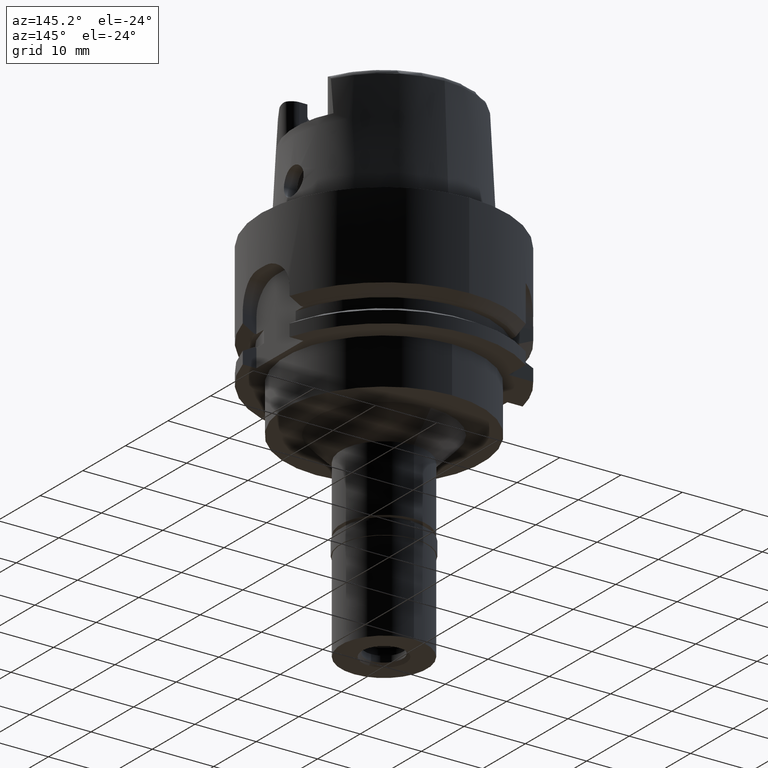
[diagram: clean part render]
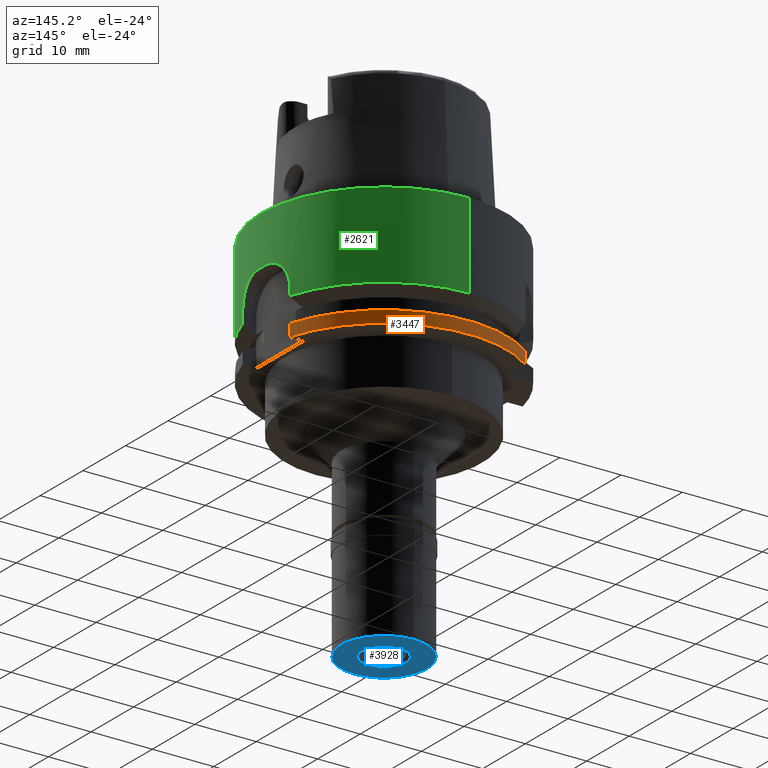
[diagram: same view with three faces highlighted in distinct colors, each labeled with its STEP entity id]
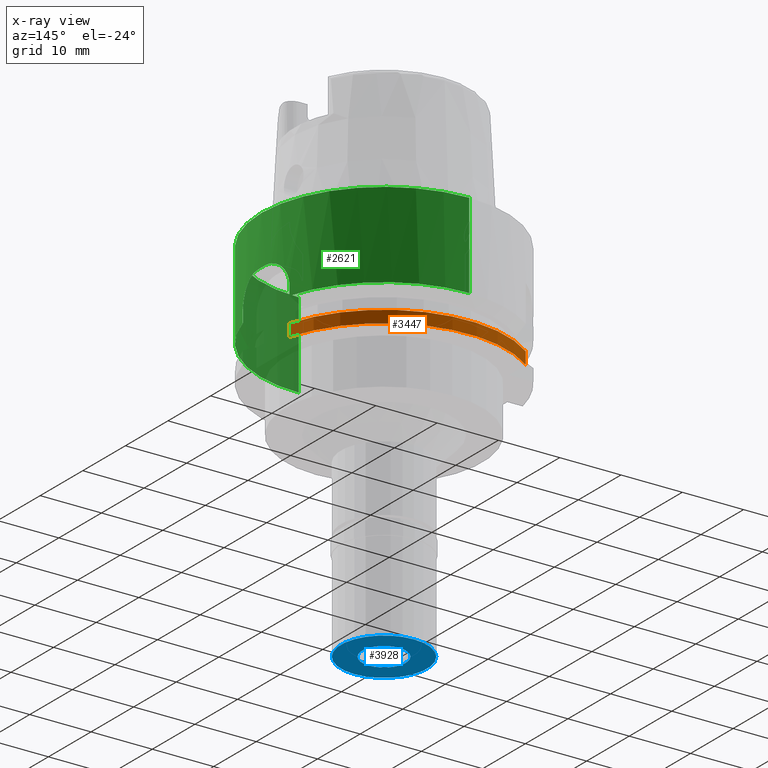
[diagram: x-ray of the same camera — body ghosted, the three highlighted faces saturated]
A machine part, auxiliary view with three faces highlighted in distinct colors.
The next image is the same camera in x-ray (body ghosted, the three faces saturated) — at least one of them is partly hidden behind the body in this view.
Their STEP definitions:

[orange] entity #3447 — the highlighted cylindrical surface (partial cylindrical patch) has radius 20 mm, axis along (0, 0, 1).
#133 = CARTESIAN_POINT ( 'NONE',  ( 0.0000000000000000000, 0.0000000000000000000, -59.79999999999999716 ) ) ;
#136 = DIRECTION ( 'NONE',  ( -6.971991833363777975E-08, 2.437508621263919261E-07, 0.9999999999999678035 ) ) ;
#162 = LINE ( 'NONE', #3825, #3506 ) ;
#165 = CARTESIAN_POINT ( 'NONE',  ( 0.0000000000000000000, 0.0000000000000000000, -18.02072594216000212 ) ) ;
#246 = DIRECTION ( 'NONE',  ( 0.0000000000000000000, 0.0000000000000000000, 1.000000000000000000 ) ) ;
#376 = VERTEX_POINT ( 'NONE', #5070 ) ;
#458 = DIRECTION ( 'NONE',  ( 0.0000000000000000000, 1.000000000000000000, 0.0000000000000000000 ) ) ;
#854 = EDGE_CURVE ( 'NONE', #5096, #376, #1889, .T. ) ;
#950 = AXIS2_PLACEMENT_3D ( 'NONE', #133, #2494, #458 ) ;
#1043 = VERTEX_POINT ( 'NONE', #2911 ) ;
#1296 = EDGE_LOOP ( 'NONE', ( #2926, #5114, #4086, #2801 ) ) ;
#1365 = CIRCLE ( 'NONE', #4160, 20.00000000000000000 ) ;
#1468 = CARTESIAN_POINT ( 'NONE',  ( 19.22888452303000051, 5.500000000000000000, -20.00000000000000000 ) ) ;
#1478 = DIRECTION ( 'NONE',  ( 0.0000000000000000000, 1.000000000000000000, 0.0000000000000000000 ) ) ;
#1834 = DIRECTION ( 'NONE',  ( 0.0000000000000000000, 0.0000000000000000000, -1.000000000000000000 ) ) ;
#1889 = LINE ( 'NONE', #5198, #3452 ) ;
#2056 = CARTESIAN_POINT ( 'NONE',  ( -12.00000837203000081, 15.99999372097000006, -18.02075773440000006 ) ) ;
#2338 = DIRECTION ( 'NONE',  ( 4.229916271528087972E-06, 3.172442792338068757E-06, -0.9999999999860217370 ) ) ;
#2398 = AXIS2_PLACEMENT_3D ( 'NONE', #165, #1834, #5086 ) ;
#2494 = DIRECTION ( 'NONE',  ( 0.0000000000000000000, 0.0000000000000000000, 1.000000000000000000 ) ) ;
#2801 = ORIENTED_EDGE ( 'NONE', *, *, #854, .F. ) ;
#2911 = CARTESIAN_POINT ( 'NONE',  ( 19.22888438503999708, 5.500000482449000749, -18.02072998519999913 ) ) ;
#2926 = ORIENTED_EDGE ( 'NONE', *, *, #5388, .T. ) ;
#2961 = FACE_OUTER_BOUND ( 'NONE', #1296, .T. ) ;
#3247 = EDGE_CURVE ( 'NONE', #3680, #1043, #162, .T. ) ;
#3447 = ADVANCED_FACE ( 'NONE', ( #2961 ), #5108, .T. ) ;
#3452 = VECTOR ( 'NONE', #2338, 1000.000000000000114 ) ;
#3495 = CARTESIAN_POINT ( 'NONE',  ( 0.0000000000000000000, 0.0000000000000000000, -20.00000000000000000 ) ) ;
#3506 = VECTOR ( 'NONE', #136, 1000.000000000000227 ) ;
#3680 = VERTEX_POINT ( 'NONE', #1468 ) ;
#3825 = CARTESIAN_POINT ( 'NONE',  ( 19.22888452303000051, 5.500000000000000000, -20.00000000000000000 ) ) ;
#4086 = ORIENTED_EDGE ( 'NONE', *, *, #5001, .T. ) ;
#4160 = AXIS2_PLACEMENT_3D ( 'NONE', #3495, #246, #1478 ) ;
#4784 = CIRCLE ( 'NONE', #2398, 20.00000000000000000 ) ;
#5001 = EDGE_CURVE ( 'NONE', #3680, #376, #1365, .T. ) ;
#5070 = CARTESIAN_POINT ( 'NONE',  ( -12.00000000000000000, 16.00000000000000000, -20.00000000000000000 ) ) ;
#5086 = DIRECTION ( 'NONE',  ( -0.5999999999999999778, 0.8000000000000000444, 0.0000000000000000000 ) ) ;
#5096 = VERTEX_POINT ( 'NONE', #2056 ) ;
#5108 = CYLINDRICAL_SURFACE ( 'NONE', #950, 20.00000000000000000 ) ;
#5114 = ORIENTED_EDGE ( 'NONE', *, *, #3247, .F. ) ;
#5198 = CARTESIAN_POINT ( 'NONE',  ( -12.00000837203000081, 15.99999372097000006, -18.02075773440000006 ) ) ;
#5388 = EDGE_CURVE ( 'NONE', #5096, #1043, #4784, .T. ) ;

[blue] entity #3928 — the highlighted planar face has unit normal (0, 0, 1).
#73 = VERTEX_POINT ( 'NONE', #3901 ) ;
#220 = CIRCLE ( 'NONE', #3262, 7.000000000000000000 ) ;
#349 = ORIENTED_EDGE ( 'NONE', *, *, #2715, .F. ) ;
#556 = CARTESIAN_POINT ( 'NONE',  ( 0.0000000000000000000, 0.0000000000000000000, -17.00000000000000000 ) ) ;
#732 = VERTEX_POINT ( 'NONE', #1784 ) ;
#742 = CARTESIAN_POINT ( 'NONE',  ( 0.0000000000000000000, 0.0000000000000000000, -17.00000000000000000 ) ) ;
#792 = ORIENTED_EDGE ( 'NONE', *, *, #4270, .F. ) ;
#850 = CARTESIAN_POINT ( 'NONE',  ( 0.0000000000000000000, 0.0000000000000000000, -17.00000000000000000 ) ) ;
#879 = DIRECTION ( 'NONE',  ( 0.0000000000000000000, 1.000000000000000000, 0.0000000000000000000 ) ) ;
#880 = DIRECTION ( 'NONE',  ( 0.0000000000000000000, 1.000000000000000000, 0.0000000000000000000 ) ) ;
#908 = CIRCLE ( 'NONE', #5183, 3.550000000000000266 ) ;
#912 = AXIS2_PLACEMENT_3D ( 'NONE', #556, #1405, #880 ) ;
#993 = EDGE_CURVE ( 'NONE', #73, #4643, #908, .T. ) ;
#1362 = EDGE_CURVE ( 'NONE', #4643, #73, #5335, .T. ) ;
#1405 = DIRECTION ( 'NONE',  ( 0.0000000000000000000, 0.0000000000000000000, -1.000000000000000000 ) ) ;
#1624 = EDGE_LOOP ( 'NONE', ( #1631, #5051 ) ) ;
#1631 = ORIENTED_EDGE ( 'NONE', *, *, #1362, .F. ) ;
#1634 = CARTESIAN_POINT ( 'NONE',  ( 0.0000000000000000000, 0.0000000000000000000, -17.00000000000000000 ) ) ;
#1739 = CIRCLE ( 'NONE', #3579, 7.000000000000000000 ) ;
#1784 = CARTESIAN_POINT ( 'NONE',  ( 0.0000000000000000000, 7.000000000000000000, -17.00000000000000000 ) ) ;
#1862 = CARTESIAN_POINT ( 'NONE',  ( 0.0000000000000000000, -7.000000000000000000, -17.00000000000000000 ) ) ;
#1873 = DIRECTION ( 'NONE',  ( 0.0000000000000000000, 0.0000000000000000000, 1.000000000000000000 ) ) ;
#1939 = DIRECTION ( 'NONE',  ( 0.0000000000000000000, 0.0000000000000000000, 1.000000000000000000 ) ) ;
#2268 = FACE_BOUND ( 'NONE', #1624, .T. ) ;
#2320 = EDGE_LOOP ( 'NONE', ( #349, #792 ) ) ;
#2416 = DIRECTION ( 'NONE',  ( 0.0000000000000000000, -1.000000000000000000, 0.0000000000000000000 ) ) ;
#2421 = AXIS2_PLACEMENT_3D ( 'NONE', #4778, #1873, #4806 ) ;
#2630 = FACE_OUTER_BOUND ( 'NONE', #2320, .T. ) ;
#2715 = EDGE_CURVE ( 'NONE', #732, #2922, #220, .T. ) ;
#2804 = DIRECTION ( 'NONE',  ( 0.0000000000000000000, -1.000000000000000000, 0.0000000000000000000 ) ) ;
#2889 = DIRECTION ( 'NONE',  ( 0.0000000000000000000, 0.0000000000000000000, 1.000000000000000000 ) ) ;
#2922 = VERTEX_POINT ( 'NONE', #1862 ) ;
#3134 = CARTESIAN_POINT ( 'NONE',  ( 0.0000000000000000000, 3.550000000000000266, -17.00000000000000000 ) ) ;
#3262 = AXIS2_PLACEMENT_3D ( 'NONE', #850, #2889, #879 ) ;
#3579 = AXIS2_PLACEMENT_3D ( 'NONE', #742, #1939, #2804 ) ;
#3901 = CARTESIAN_POINT ( 'NONE',  ( 0.0000000000000000000, -3.550000000000000266, -17.00000000000000000 ) ) ;
#3928 = ADVANCED_FACE ( 'NONE', ( #2630, #2268 ), #5155, .F. ) ;
#4270 = EDGE_CURVE ( 'NONE', #2922, #732, #1739, .T. ) ;
#4557 = DIRECTION ( 'NONE',  ( 0.0000000000000000000, 0.0000000000000000000, -1.000000000000000000 ) ) ;
#4643 = VERTEX_POINT ( 'NONE', #3134 ) ;
#4778 = CARTESIAN_POINT ( 'NONE',  ( 0.0000000000000000000, 0.0000000000000000000, -17.00000000000000000 ) ) ;
#4806 = DIRECTION ( 'NONE',  ( 1.000000000000000000, 0.0000000000000000000, 0.0000000000000000000 ) ) ;
#5051 = ORIENTED_EDGE ( 'NONE', *, *, #993, .F. ) ;
#5155 = PLANE ( 'NONE',  #2421 ) ;
#5183 = AXIS2_PLACEMENT_3D ( 'NONE', #1634, #4557, #2416 ) ;
#5335 = CIRCLE ( 'NONE', #912, 3.550000000000000266 ) ;

[green] entity #2621 — the highlighted cylindrical surface (partial cylindrical patch) has radius 20 mm, axis along (0, 0, 1).
#51 = DIRECTION ( 'NONE',  ( 0.0000000000000000000, 0.0000000000000000000, 1.000000000000000000 ) ) ;
#56 = CARTESIAN_POINT ( 'NONE',  ( 19.22888452303000051, -5.500000000000000000, -12.50000000000000000 ) ) ;
#91 = AXIS2_PLACEMENT_3D ( 'NONE', #1061, #1137, #2823 ) ;
#92 = DIRECTION ( 'NONE',  ( 0.0000000000000000000, -4.549132851063000272E-14, -1.000000000000000000 ) ) ;
#97 = EDGE_CURVE ( 'NONE', #3498, #1201, #2639, .T. ) ;
#110 = CARTESIAN_POINT ( 'NONE',  ( 0.0000000000000000000, 0.0000000000000000000, -13.97927405783999966 ) ) ;
#151 = CARTESIAN_POINT ( 'NONE',  ( 19.89335567336978627, 2.144328412485492219, -8.101629999660756809 ) ) ;
#167 = B_SPLINE_CURVE_WITH_KNOTS ( 'NONE', 3,
 ( #3673, #5359, #1565, #1099, #4827, #1617, #749, #3193, #2400, #2323, #5330, #2428, #4493, #2375, #1589, #4904, #4928, #778, #365, #2022, #5254, #2351, #1074, #2734, #4414, #674, #3998, #1510, #3169, #4851, #2762, #4026, #698, #1946, #5281, #4167, #1232, #5069, #1315, #2894, #4571, #1675, #1291, #2160, #2974, #1733, #4658, #3374, #4223, #2485, #397, #4958, #448, #3783 ),
 .UNSPECIFIED., .F., .F.,
 ( 4, 2, 2, 1, 1, 1, 2, 2, 2, 2, 1, 1, 1, 1, 1, 2, 2, 2, 2, 2, 1, 1, 1, 2, 2, 2, 2, 2, 1, 1, 1, 2, 2, 4 ),
 ( 0.0000000000000000000, 0.1249999999997689071, 0.1874999999996534716, 0.2187499999995958233, 0.2343749999995671518, 0.2421874999995527744, 0.2460937499995456135, 0.2499999999995384248, 0.3124999999994242383, 0.3437499999993670619, 0.3593749999993381961, 0.3671874999993237076, 0.3710937499993162692, 0.3730468749993122168, 0.3740234374993102184, 0.3745117187493091082, 0.3749999999993080535, 0.4374999999993889332, 0.4687499999994294564, 0.4843749999994497735, 0.4921874999994600430, 0.4960937499994650390, 0.4980468749994677036, 0.4990234374994690358, 0.4999999999994703126, 0.6249999999995893285, 0.6874999999996488365, 0.7187499999996783684, 0.7343749999996928013, 0.7421874999997001288, 0.7460937499997037925, 0.7480468749997061240, 0.7499999999997083444, 1.000000000000000000 ),
 .UNSPECIFIED. ) ;
#179 = CARTESIAN_POINT ( 'NONE',  ( 19.22888438503999708, 5.500000482439000749, -13.97927001509999911 ) ) ;
#259 = CIRCLE ( 'NONE', #91, 20.00000000000000000 ) ;
#260 = AXIS2_PLACEMENT_3D ( 'NONE', #5344, #51, #1718 ) ;
#365 = CARTESIAN_POINT ( 'NONE',  ( 19.70267213807714768, -3.435873196089922477, -8.716183529091241056 ) ) ;
#397 = CARTESIAN_POINT ( 'NONE',  ( 19.32339585466796450, -5.158492913142817216, -10.78041865482828499 ) ) ;
#417 = VERTEX_POINT ( 'NONE', #5098 ) ;
#448 = CARTESIAN_POINT ( 'NONE',  ( 19.22888452303000051, -5.500000000000000000, -11.94492879392998752 ) ) ;
#490 = LINE ( 'NONE', #3855, #4888 ) ;
#540 = CARTESIAN_POINT ( 'NONE',  ( 19.23659385547790279, 5.474636443436918576, -11.94125865173064582 ) ) ;
#571 = CARTESIAN_POINT ( 'NONE',  ( 19.76304889700402967, 3.072041751379376073, -8.504730640401618302 ) ) ;
#597 = CARTESIAN_POINT ( 'NONE',  ( 19.29610026531020850, 5.260308519016965612, -11.04748964016566148 ) ) ;
#639 = ORIENTED_EDGE ( 'NONE', *, *, #2985, .T. ) ;
#649 = CARTESIAN_POINT ( 'NONE',  ( 19.80285706674621338, 2.801246046131140588, -8.376054429788005962 ) ) ;
#674 = CARTESIAN_POINT ( 'NONE',  ( 19.69006013265592259, -3.507378425386567411, -8.763260683198105028 ) ) ;
#698 = CARTESIAN_POINT ( 'NONE',  ( 19.57603633006141663, -4.096177702136805543, -9.234171356003837872 ) ) ;
#725 = EDGE_CURVE ( 'NONE', #1088, #4249, #4251, .T. ) ;
#749 = CARTESIAN_POINT ( 'NONE',  ( 19.84841862392591239, -2.458145788978062463, -8.241565015754648726 ) ) ;
#757 = CARTESIAN_POINT ( 'NONE',  ( 0.0000000000000000000, 20.00000000000000000, -13.97927405783999966 ) ) ;
#778 = CARTESIAN_POINT ( 'NONE',  ( 19.71314345954695924, -3.375460247585270857, -8.677685215591239398 ) ) ;
#868 = CARTESIAN_POINT ( 'NONE',  ( 0.0000000000000000000, 20.00000000000000000, 2.842170943039999687E-14 ) ) ;
#910 = CARTESIAN_POINT ( 'NONE',  ( 19.22888452303000051, -5.500000000000000000, -12.50000000000000000 ) ) ;
#975 = CARTESIAN_POINT ( 'NONE',  ( 19.53068921811413006, 4.307772359090763281, -9.448422801194535481 ) ) ;
#1001 = CARTESIAN_POINT ( 'NONE',  ( 19.34392790665239303, 5.081397619062402171, -10.59153971330686517 ) ) ;
#1011 = CARTESIAN_POINT ( 'NONE',  ( 0.0000000000000000000, -20.00000000000000000, 4.973799150320999175E-14 ) ) ;
#1048 = DIRECTION ( 'NONE',  ( 0.0000000000000000000, 1.000000000000000000, 0.0000000000000000000 ) ) ;
#1052 = CARTESIAN_POINT ( 'NONE',  ( 19.79308005088291011, 2.869920567938713862, -8.406735843562756827 ) ) ;
#1061 = CARTESIAN_POINT ( 'NONE',  ( 0.0000000000000000000, 0.0000000000000000000, -13.97927405783999966 ) ) ;
#1074 = CARTESIAN_POINT ( 'NONE',  ( 19.69274314928225422, -3.492268379238754328, -8.753188017611570615 ) ) ;
#1088 = VERTEX_POINT ( 'NONE', #56 ) ;
#1099 = CARTESIAN_POINT ( 'NONE',  ( 19.90130047639337363, -1.985477846421476622, -8.106792409467621141 ) ) ;
#1137 = DIRECTION ( 'NONE',  ( 0.0000000000000000000, 0.0000000000000000000, 1.000000000000000000 ) ) ;
#1141 = CARTESIAN_POINT ( 'NONE',  ( 19.22888452303000051, -5.499999999998999911, -13.97927405783999966 ) ) ;
#1201 = VERTEX_POINT ( 'NONE', #1011 ) ;
#1232 = CARTESIAN_POINT ( 'NONE',  ( 19.55921030672291749, -4.175847404122747797, -9.311895150443433522 ) ) ;
#1291 = CARTESIAN_POINT ( 'NONE',  ( 19.35532325928711828, -5.038565037878893094, -10.51399933875955384 ) ) ;
#1315 = CARTESIAN_POINT ( 'NONE',  ( 19.50217921959730205, -4.442594003733398189, -9.578651589275207101 ) ) ;
#1356 = DIRECTION ( 'NONE',  ( 0.0000000000000000000, 0.0000000000000000000, -1.000000000000000000 ) ) ;
#1377 = ORIENTED_EDGE ( 'NONE', *, *, #2812, .F. ) ;
#1439 = CARTESIAN_POINT ( 'NONE',  ( 19.22888452303000051, 5.500000000000000000, -12.22452500506790862 ) ) ;
#1460 = DIRECTION ( 'NONE',  ( 0.0000000000000000000, 0.0000000000000000000, 1.000000000000000000 ) ) ;
#1488 = CARTESIAN_POINT ( 'NONE',  ( 19.31805002971633556, 5.178514043762493912, -10.82961678952050910 ) ) ;
#1510 = CARTESIAN_POINT ( 'NONE',  ( 19.64440606327426764, -3.753015825505305880, -8.939609798992917078 ) ) ;
#1548 = DIRECTION ( 'NONE',  ( 0.0000000000000000000, 4.549132851063000272E-14, -1.000000000000000000 ) ) ;
#1557 = AXIS2_PLACEMENT_3D ( 'NONE', #110, #1855, #2690 ) ;
#1565 = CARTESIAN_POINT ( 'NONE',  ( 19.94126833981959379, -1.553961944005697760, -8.024635853722200451 ) ) ;
#1589 = CARTESIAN_POINT ( 'NONE',  ( 19.74957719967446934, -3.155379730779135361, -8.549071909224613464 ) ) ;
#1617 = CARTESIAN_POINT ( 'NONE',  ( 19.86146910055557768, -2.348871068700572273, -8.206248360021437094 ) ) ;
#1675 = CARTESIAN_POINT ( 'NONE',  ( 19.37849386904962756, -4.950198544500286957, -10.34065838146698724 ) ) ;
#1718 = DIRECTION ( 'NONE',  ( 0.9987492177719088371, -0.04999999999999998890, 0.0000000000000000000 ) ) ;
#1733 = CARTESIAN_POINT ( 'NONE',  ( 19.33325746712852222, -5.121509964628943479, -10.69317378615918734 ) ) ;
#1762 = ORIENTED_EDGE ( 'NONE', *, *, #2349, .F. ) ;
#1809 = VERTEX_POINT ( 'NONE', #757 ) ;
#1815 = ORIENTED_EDGE ( 'NONE', *, *, #2223, .F. ) ;
#1820 = CARTESIAN_POINT ( 'NONE',  ( 19.32043472801015938, 5.169572748141373353, -10.80746168714704858 ) ) ;
#1849 = CARTESIAN_POINT ( 'NONE',  ( 19.25972185282163096, 5.392789179745101968, -11.51281003797939206 ) ) ;
#1855 = DIRECTION ( 'NONE',  ( 0.0000000000000000000, 0.0000000000000000000, 1.000000000000000000 ) ) ;
#1876 = DIRECTION ( 'NONE',  ( 0.0000000000000000000, 1.000000000000000000, 0.0000000000000000000 ) ) ;
#1899 = CARTESIAN_POINT ( 'NONE',  ( 19.45429869784025811, 4.644412652473961955, -9.855112538746510609 ) ) ;
#1946 = CARTESIAN_POINT ( 'NONE',  ( 19.56709572651514506, -4.138719417156759839, -9.275258457773182030 ) ) ;
#2022 = CARTESIAN_POINT ( 'NONE',  ( 19.69735038645563918, -3.466205823345975379, -8.735957270025103583 ) ) ;
#2060 = ORIENTED_EDGE ( 'NONE', *, *, #97, .T. ) ;
#2160 = CARTESIAN_POINT ( 'NONE',  ( 19.34811643789123181, -5.065740602235473844, -10.57039094677958779 ) ) ;
#2178 = VERTEX_POINT ( 'NONE', #3097 ) ;
#2195 = CARTESIAN_POINT ( 'NONE',  ( 19.37460722631804444, 4.968141091574619139, -10.35745565388886291 ) ) ;
#2221 = CARTESIAN_POINT ( 'NONE',  ( 19.71061661248998576, 3.394884962808642825, -8.687387489418284758 ) ) ;
#2223 = EDGE_CURVE ( 'NONE', #417, #4938, #3219, .T. ) ;
#2270 = CARTESIAN_POINT ( 'NONE',  ( 19.64372892379043023, 3.757534281539691268, -8.940804196873074261 ) ) ;
#2299 = CARTESIAN_POINT ( 'NONE',  ( 19.80744021060057847, 2.768533228843972349, -8.361899853710310637 ) ) ;
#2323 = CARTESIAN_POINT ( 'NONE',  ( 19.82004290327910567, -2.676439156276073206, -8.323919576290942146 ) ) ;
#2349 = EDGE_CURVE ( 'NONE', #2964, #1088, #167, .T. ) ;
#2351 = CARTESIAN_POINT ( 'NONE',  ( 19.69332140797660458, -3.489007400821729554, -8.751019594731543449 ) ) ;
#2363 = ORIENTED_EDGE ( 'NONE', *, *, #4639, .T. ) ;
#2375 = CARTESIAN_POINT ( 'NONE',  ( 19.78036261488083269, -2.958436143423619047, -8.445803887148748856 ) ) ;
#2400 = CARTESIAN_POINT ( 'NONE',  ( 19.82370695197549182, -2.649185133246400703, -8.313013301156070511 ) ) ;
#2428 = CARTESIAN_POINT ( 'NONE',  ( 19.81613325514287638, -2.705294497717142477, -8.335622991193288200 ) ) ;
#2440 = VECTOR ( 'NONE', #92, 1000.000000000000000 ) ;
#2485 = CARTESIAN_POINT ( 'NONE',  ( 19.32361526154545217, -5.157668876976087446, -10.77843043010849655 ) ) ;
#2571 = DIRECTION ( 'NONE',  ( 1.988963543757989487E-08, 6.953939028894961663E-08, -0.9999999999999973355 ) ) ;
#2621 = ADVANCED_FACE ( 'NONE', ( #3942 ), #4745, .T. ) ;
#2632 = CARTESIAN_POINT ( 'NONE',  ( 19.54750938070997890, 4.230322960344789607, -9.367087278118559013 ) ) ;
#2639 = CIRCLE ( 'NONE', #4316, 20.00000000000000000 ) ;
#2659 = CARTESIAN_POINT ( 'NONE',  ( 19.32104445936979786, 5.167284975352738563, -10.80183977556034591 ) ) ;
#2682 = CARTESIAN_POINT ( 'NONE',  ( 19.52092653863507365, 4.352013082524368137, -9.497352243686126627 ) ) ;
#2690 = DIRECTION ( 'NONE',  ( 0.9614442261514726251, 0.2749999999999924727, 0.0000000000000000000 ) ) ;
#2704 = CARTESIAN_POINT ( 'NONE',  ( 19.43284809394379664, 4.733461550932530848, -9.983469680863667151 ) ) ;
#2734 = CARTESIAN_POINT ( 'NONE',  ( 19.69235738726312945, -3.494442703321395616, -8.754635223990920423 ) ) ;
#2762 = CARTESIAN_POINT ( 'NONE',  ( 19.59746964130676972, -3.991897465615183105, -9.138090891699411245 ) ) ;
#2812 = EDGE_CURVE ( 'NONE', #3498, #1809, #3534, .T. ) ;
#2823 = DIRECTION ( 'NONE',  ( 0.0000000000000000000, -1.000000000000000000, 0.0000000000000000000 ) ) ;
#2834 = ORIENTED_EDGE ( 'NONE', *, *, #3156, .F. ) ;
#2894 = CARTESIAN_POINT ( 'NONE',  ( 19.45475018711523063, -4.645026843544051154, -9.844581254208636167 ) ) ;
#2964 = VERTEX_POINT ( 'NONE', #5025 ) ;
#2974 = CARTESIAN_POINT ( 'NONE',  ( 19.33808127858485904, -5.103432223538802326, -10.65263608821719288 ) ) ;
#2985 = EDGE_CURVE ( 'NONE', #2964, #4938, #4972, .T. ) ;
#2998 = CARTESIAN_POINT ( 'NONE',  ( 0.0000000000000000000, 20.00000000000000000, 2.842170943039999687E-14 ) ) ;
#3042 = CARTESIAN_POINT ( 'NONE',  ( 19.30832678473931452, 5.214864014485015353, -10.92283349827791561 ) ) ;
#3047 = VECTOR ( 'NONE', #1548, 1000.000000000000000 ) ;
#3051 = CIRCLE ( 'NONE', #1557, 20.00000000000000355 ) ;
#3069 = CARTESIAN_POINT ( 'NONE',  ( 19.57669236913240951, 4.094477243181033010, -9.229513695134629714 ) ) ;
#3097 = CARTESIAN_POINT ( 'NONE',  ( 0.0000000000000000000, -20.00000000000000000, -13.97927405783999966 ) ) ;
#3124 = CARTESIAN_POINT ( 'NONE',  ( 19.73203759432056259, 3.268435167300694388, -8.610740559878609091 ) ) ;
#3147 = CARTESIAN_POINT ( 'NONE',  ( 19.31947859009914836, 5.173158578107386774, -10.81632238106961985 ) ) ;
#3156 = EDGE_CURVE ( 'NONE', #3853, #417, #490, .T. ) ;
#3169 = CARTESIAN_POINT ( 'NONE',  ( 19.63067666578887938, -3.824795348198209322, -8.995411347834611604 ) ) ;
#3193 = CARTESIAN_POINT ( 'NONE',  ( 19.83212258908739756, -2.585548732823263141, -8.288267443671319512 ) ) ;
#3219 = B_SPLINE_CURVE_WITH_KNOTS ( 'NONE', 3,
 ( #3522, #1439, #540, #1849, #5180, #5208, #597, #3042, #4725, #1488, #3147, #1820, #2659, #1001, #2195, #2704, #1899, #4783, #3874, #2682, #975, #4366, #2632, #3897, #4317, #3069, #4342, #2270, #3946, #2221, #3124, #571, #4808, #1052, #649, #2299, #151, #3972, #3496 ),
 .UNSPECIFIED., .F., .F.,
 ( 4, 2, 2, 1, 1, 1, 1, 2, 2, 2, 2, 2, 1, 1, 2, 2, 2, 2, 2, 1, 2, 2, 4 ),
 ( 0.0000000000000000000, 0.1250000000000104361, 0.1875000000000159872, 0.2187500000000187628, 0.2343750000000204836, 0.2421875000000216216, 0.2460937500000223710, 0.2480468750000226763, 0.2500000000000229816, 0.3750000000000198175, 0.4375000000000182077, 0.4687500000000173195, 0.4843750000000170974, 0.4921875000000173195, 0.4960937500000174305, 0.5000000000000175415, 0.5625000000000155431, 0.6250000000000135447, 0.6875000000000115463, 0.7187500000000103251, 0.7343750000000098810, 0.7500000000000094369, 1.000000000000000000 ),
 .UNSPECIFIED. ) ;
#3289 = EDGE_CURVE ( 'NONE', #3853, #1809, #3051, .T. ) ;
#3337 = ORIENTED_EDGE ( 'NONE', *, *, #4529, .T. ) ;
#3374 = CARTESIAN_POINT ( 'NONE',  ( 19.32540921218284069, -5.150933045010750000, -10.76223087732004835 ) ) ;
#3496 = CARTESIAN_POINT ( 'NONE',  ( 19.97498435543999662, 0.9999999999999000799, -8.000000000000000000 ) ) ;
#3498 = VERTEX_POINT ( 'NONE', #868 ) ;
#3522 = CARTESIAN_POINT ( 'NONE',  ( 19.22888452303000051, 5.500000000000000000, -12.50000000000000000 ) ) ;
#3534 = LINE ( 'NONE', #2998, #2440 ) ;
#3673 = CARTESIAN_POINT ( 'NONE',  ( 19.97498435543999662, -0.9999999999999000799, -8.000000000000000000 ) ) ;
#3783 = CARTESIAN_POINT ( 'NONE',  ( 19.22888452303000051, -5.500000000000000000, -12.50000000000000000 ) ) ;
#3820 = ORIENTED_EDGE ( 'NONE', *, *, #3289, .T. ) ;
#3853 = VERTEX_POINT ( 'NONE', #179 ) ;
#3855 = CARTESIAN_POINT ( 'NONE',  ( 19.22888438503999708, 5.500000482439000749, -13.97927001509999911 ) ) ;
#3874 = CARTESIAN_POINT ( 'NONE',  ( 19.50178311368090789, 4.437984536188096740, -9.595210275325154470 ) ) ;
#3897 = CARTESIAN_POINT ( 'NONE',  ( 19.55092274637132022, 4.214494902100974549, -9.350849150100273732 ) ) ;
#3942 = FACE_OUTER_BOUND ( 'NONE', #4550, .T. ) ;
#3946 = CARTESIAN_POINT ( 'NONE',  ( 19.66628108874564518, 3.637937545223222546, -8.851332620197773338 ) ) ;
#3947 = CARTESIAN_POINT ( 'NONE',  ( 0.0000000000000000000, 0.0000000000000000000, 4.973799150320999175E-14 ) ) ;
#3972 = CARTESIAN_POINT ( 'NONE',  ( 19.94751910473255307, 1.548617953056870000, -7.999999999999991118 ) ) ;
#3998 = CARTESIAN_POINT ( 'NONE',  ( 19.67792994971534881, -3.575208927927476577, -8.806736260004933925 ) ) ;
#4026 = CARTESIAN_POINT ( 'NONE',  ( 19.58334044018517517, -4.060857313348768649, -9.201193650481039654 ) ) ;
#4118 = CARTESIAN_POINT ( 'NONE',  ( 19.97498435543999662, 0.9999999999999000799, -8.000000000000000000 ) ) ;
#4167 = CARTESIAN_POINT ( 'NONE',  ( 19.56053743362657826, -4.169621998353268744, -9.305705765964203735 ) ) ;
#4223 = CARTESIAN_POINT ( 'NONE',  ( 19.32433041969795084, -5.154983158805767296, -10.77195855819587678 ) ) ;
#4249 = VERTEX_POINT ( 'NONE', #1141 ) ;
#4251 = LINE ( 'NONE', #910, #4752 ) ;
#4316 = AXIS2_PLACEMENT_3D ( 'NONE', #3947, #1356, #1876 ) ;
#4317 = CARTESIAN_POINT ( 'NONE',  ( 19.55296420876889130, 4.205003748717079048, -9.341196998750151081 ) ) ;
#4342 = CARTESIAN_POINT ( 'NONE',  ( 19.59903263455380085, 3.985266675276835535, -9.129532234786314149 ) ) ;
#4366 = CARTESIAN_POINT ( 'NONE',  ( 19.54241320309320429, 4.253900727512967883, -9.391460062520181395 ) ) ;
#4414 = CARTESIAN_POINT ( 'NONE',  ( 19.69198617144294161, -3.496533464392037160, -8.756028756603322805 ) ) ;
#4427 = CARTESIAN_POINT ( 'NONE',  ( 0.0000000000000000000, -20.00000000000000000, 2.842170943039999687E-14 ) ) ;
#4493 = CARTESIAN_POINT ( 'NONE',  ( 19.79878724721146099, -2.832227450067799523, -8.387867633535138978 ) ) ;
#4529 = EDGE_CURVE ( 'NONE', #2178, #4249, #259, .T. ) ;
#4550 = EDGE_LOOP ( 'NONE', ( #639, #1815, #2834, #3820, #1377, #2060, #2363, #3337, #5265, #1762 ) ) ;
#4571 = CARTESIAN_POINT ( 'NONE',  ( 19.39600780299115357, -4.882167647177913850, -10.21950844978120720 ) ) ;
#4639 = EDGE_CURVE ( 'NONE', #1201, #2178, #5292, .T. ) ;
#4658 = CARTESIAN_POINT ( 'NONE',  ( 19.32796878144064934, -5.141330893544608038, -10.73939453386890719 ) ) ;
#4705 = DIRECTION ( 'NONE',  ( 9.328386055539403595E-08, -3.261333081564141678E-07, 0.9999999999999424904 ) ) ;
#4725 = CARTESIAN_POINT ( 'NONE',  ( 19.31475624754254738, 5.190847333182726508, -10.86066003661227164 ) ) ;
#4745 = CYLINDRICAL_SURFACE ( 'NONE', #4930, 20.00000000000000000 ) ;
#4752 = VECTOR ( 'NONE', #2571, 1000.000000000000000 ) ;
#4783 = CARTESIAN_POINT ( 'NONE',  ( 19.48953007571676821, 4.491951112803580948, -9.660445326844032010 ) ) ;
#4808 = CARTESIAN_POINT ( 'NONE',  ( 19.77827450583017210, 2.972167438716637022, -8.453965286069237806 ) ) ;
#4827 = CARTESIAN_POINT ( 'NONE',  ( 19.88634664950564712, -2.130603934985399572, -8.141702171101698582 ) ) ;
#4851 = CARTESIAN_POINT ( 'NONE',  ( 19.60625041655323741, -3.948170071527211000, -9.099824148022134906 ) ) ;
#4888 = VECTOR ( 'NONE', #4705, 1000.000000000000000 ) ;
#4904 = CARTESIAN_POINT ( 'NONE',  ( 19.73879065015394474, -3.222290560682940175, -8.586223259454346390 ) ) ;
#4928 = CARTESIAN_POINT ( 'NONE',  ( 19.72182370919556860, -3.324154676918617657, -8.646448266145705830 ) ) ;
#4930 = AXIS2_PLACEMENT_3D ( 'NONE', #5203, #1460, #1048 ) ;
#4938 = VERTEX_POINT ( 'NONE', #4118 ) ;
#4958 = CARTESIAN_POINT ( 'NONE',  ( 19.26022506823636959, -5.395878610493000771, -11.35624131269664794 ) ) ;
#4972 = CIRCLE ( 'NONE', #260, 20.00000000000000355 ) ;
#5025 = CARTESIAN_POINT ( 'NONE',  ( 19.97498435543999662, -0.9999999999999000799, -8.000000000000000000 ) ) ;
#5069 = CARTESIAN_POINT ( 'NONE',  ( 19.55831082386064068, -4.180059027274327654, -9.316097855248454351 ) ) ;
#5098 = CARTESIAN_POINT ( 'NONE',  ( 19.22888452303000051, 5.500000000000000000, -12.50000000000000000 ) ) ;
#5180 = CARTESIAN_POINT ( 'NONE',  ( 19.26935851838151947, 5.358219115044847491, -11.36942689067134005 ) ) ;
#5203 = CARTESIAN_POINT ( 'NONE',  ( 0.0000000000000000000, 0.0000000000000000000, -59.79999999999999716 ) ) ;
#5208 = CARTESIAN_POINT ( 'NONE',  ( 19.28670451638931027, 5.294861289714977381, -11.15473651105902775 ) ) ;
#5254 = CARTESIAN_POINT ( 'NONE',  ( 19.69466798792321782, -3.481402031433701083, -8.745976627359674183 ) ) ;
#5265 = ORIENTED_EDGE ( 'NONE', *, *, #725, .F. ) ;
#5281 = CARTESIAN_POINT ( 'NONE',  ( 19.56252063930821805, -4.160305377305268060, -9.296470220472482282 ) ) ;
#5292 = LINE ( 'NONE', #4427, #3047 ) ;
#5330 = CARTESIAN_POINT ( 'NONE',  ( 19.81758746035329821, -2.694603807303679766, -8.331257517397663293 ) ) ;
#5344 = CARTESIAN_POINT ( 'NONE',  ( 0.0000000000000000000, 0.0000000000000000000, -8.000000000000000000 ) ) ;
#5359 = CARTESIAN_POINT ( 'NONE',  ( 19.96138875912112098, -1.271571823699878534, -7.999999999999994671 ) ) ;